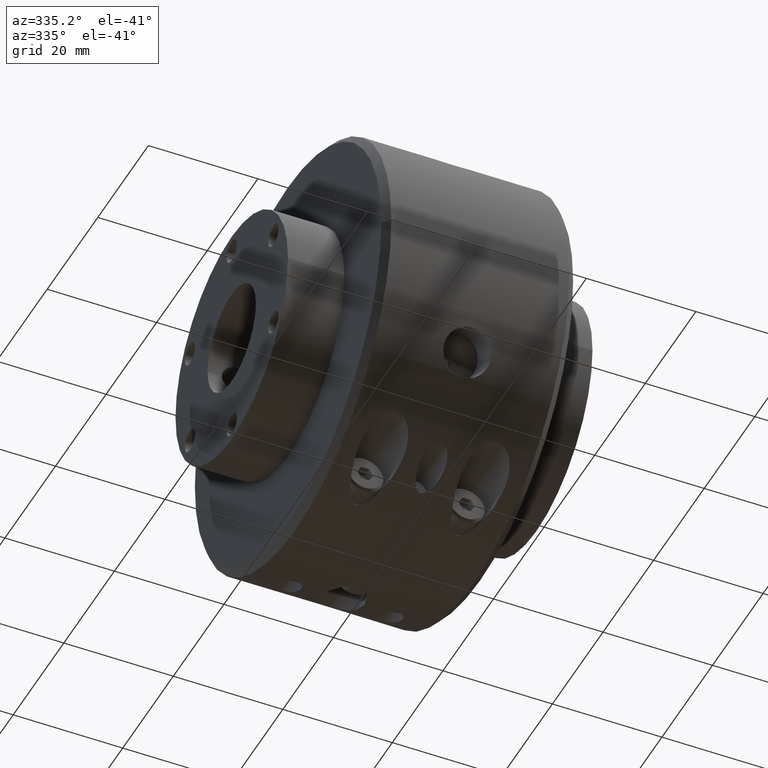
[diagram: clean part render]
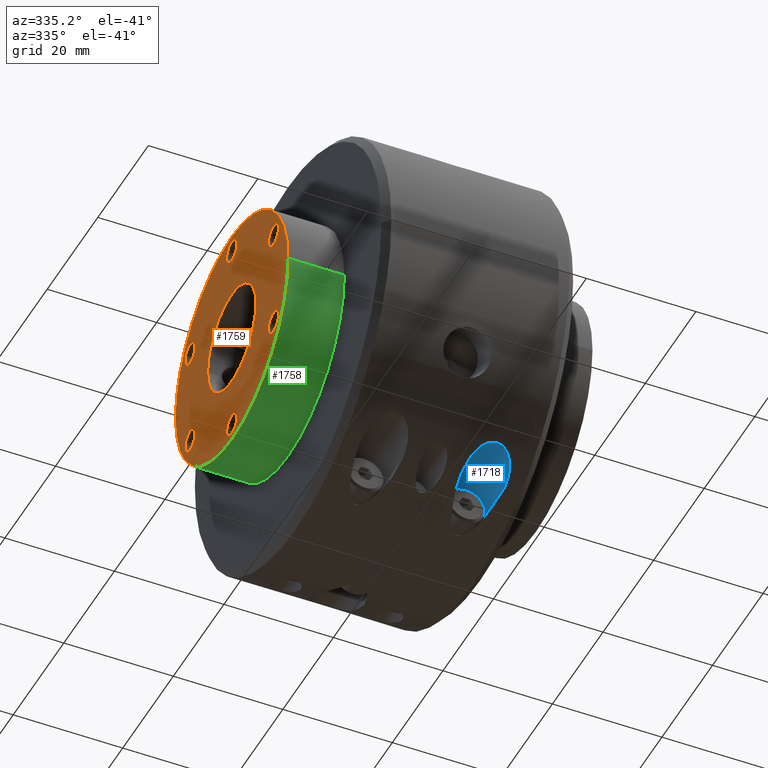
[diagram: same view with three faces highlighted in distinct colors, each labeled with its STEP entity id]
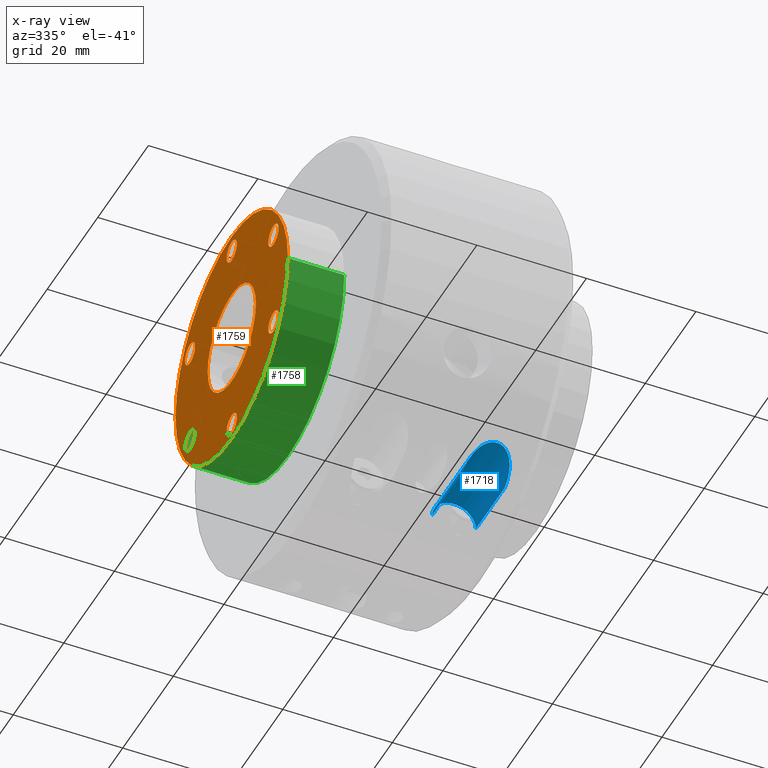
[diagram: x-ray of the same camera — body ghosted, the three highlighted faces saturated]
A machine part, auxiliary view with three faces highlighted in distinct colors.
The next image is the same camera in x-ray (body ghosted, the three faces saturated) — at least one of them is partly hidden behind the body in this view.
Their STEP definitions:

[orange] entity #1759 — the highlighted planar face has unit normal (1, 0, 0).
#347 = DIRECTION ( 'NONE',  ( 0.0000000000000000000, 0.0000000000000000000, -1.000000000000000000 ) ) ;
#367 = CARTESIAN_POINT ( 'NONE',  ( -1.095000000000000000, -0.6495190528383287800, -0.3750000000000000600 ) ) ;
#407 = DIRECTION ( 'NONE',  ( 0.0000000000000000000, 0.0000000000000000000, -1.000000000000000000 ) ) ;
#440 = CARTESIAN_POINT ( 'NONE',  ( -1.095000000000000000, 2.326758979145853200E-016, 0.7500000000000001100 ) ) ;
#444 = DIRECTION ( 'NONE',  ( 0.0000000000000000000, 0.0000000000000000000, -1.000000000000000000 ) ) ;
#446 = DIRECTION ( 'NONE',  ( 1.000000000000000000, -0.0000000000000000000, -0.0000000000000000000 ) ) ;
#451 = DIRECTION ( 'NONE',  ( 0.0000000000000000000, 0.0000000000000000000, -1.000000000000000000 ) ) ;
#454 = DIRECTION ( 'NONE',  ( 0.0000000000000000000, 0.0000000000000000000, -1.000000000000000000 ) ) ;
#458 = CARTESIAN_POINT ( 'NONE',  ( -1.095000000000000000, -4.201462788212306000E-017, 0.0000000000000000000 ) ) ;
#469 = CARTESIAN_POINT ( 'NONE',  ( -1.095000000000000000, -0.6495190528383287800, 0.3750000000000000600 ) ) ;
#478 = CARTESIAN_POINT ( 'NONE',  ( -1.095000000000000000, -0.6495190528383287800, -0.3750000000000000600 ) ) ;
#498 = CARTESIAN_POINT ( 'NONE',  ( -1.095000000000000000, 2.326758979145853200E-016, -0.7500000000000001100 ) ) ;
#509 = CARTESIAN_POINT ( 'NONE',  ( -1.095000000000000200, 0.6495190528383292200, -0.3750000000000000600 ) ) ;
#510 = CARTESIAN_POINT ( 'NONE',  ( -1.095000000000000000, 2.326758979145853200E-016, -0.7500000000000001100 ) ) ;
#535 = CARTESIAN_POINT ( 'NONE',  ( -1.095000000000000000, -4.201462788212306000E-017, 0.0000000000000000000 ) ) ;
#570 = DIRECTION ( 'NONE',  ( 0.0000000000000000000, 0.0000000000000000000, -1.000000000000000000 ) ) ;
#574 = DIRECTION ( 'NONE',  ( 1.000000000000000000, -0.0000000000000000000, -0.0000000000000000000 ) ) ;
#575 = DIRECTION ( 'NONE',  ( 1.000000000000000000, -0.0000000000000000000, -0.0000000000000000000 ) ) ;
#576 = DIRECTION ( 'NONE',  ( 1.000000000000000000, -0.0000000000000000000, -0.0000000000000000000 ) ) ;
#585 = DIRECTION ( 'NONE',  ( 0.0000000000000000000, 1.000000000000000000, 0.0000000000000000000 ) ) ;
#606 = DIRECTION ( 'NONE',  ( 1.000000000000000000, -0.0000000000000000000, -0.0000000000000000000 ) ) ;
#620 = DIRECTION ( 'NONE',  ( 0.0000000000000000000, 1.000000000000000000, 0.0000000000000000000 ) ) ;
#645 = DIRECTION ( 'NONE',  ( 0.0000000000000000000, 0.0000000000000000000, -1.000000000000000000 ) ) ;
#657 = DIRECTION ( 'NONE',  ( -1.000000000000000000, -1.224646799147353200E-016, -0.0000000000000000000 ) ) ;
#658 = DIRECTION ( 'NONE',  ( 1.561055996379579500E-016, -1.000000000000000000, 0.0000000000000000000 ) ) ;
#696 = CARTESIAN_POINT ( 'NONE',  ( -1.094999999999999800, 2.985064260428154100E-032, 0.0000000000000000000 ) ) ;
#702 = DIRECTION ( 'NONE',  ( 1.000000000000000000, -0.0000000000000000000, -0.0000000000000000000 ) ) ;
#715 = CARTESIAN_POINT ( 'NONE',  ( -1.095000000000000000, -0.6495190528383287800, 0.3750000000000000600 ) ) ;
#724 = DIRECTION ( 'NONE',  ( 1.000000000000000000, -0.0000000000000000000, -0.0000000000000000000 ) ) ;
#747 = DIRECTION ( 'NONE',  ( 1.000000000000000000, -0.0000000000000000000, -0.0000000000000000000 ) ) ;
#748 = CARTESIAN_POINT ( 'NONE',  ( -1.095000000000000200, 0.6495190528383292200, 0.3750000000000000600 ) ) ;
#774 = DIRECTION ( 'NONE',  ( 1.000000000000000000, 1.193989507720394800E-016, 0.0000000000000000000 ) ) ;
#778 = DIRECTION ( 'NONE',  ( 0.0000000000000000000, 0.0000000000000000000, -1.000000000000000000 ) ) ;
#784 = DIRECTION ( 'NONE',  ( 0.0000000000000000000, 0.0000000000000000000, -1.000000000000000000 ) ) ;
#791 = CARTESIAN_POINT ( 'NONE',  ( -1.095000000000000200, 0.6495190528383292200, 0.3750000000000000600 ) ) ;
#793 = CARTESIAN_POINT ( 'NONE',  ( -1.095000000000000200, 0.6495190528383292200, -0.3750000000000000600 ) ) ;
#803 = DIRECTION ( 'NONE',  ( 1.000000000000000000, -0.0000000000000000000, -0.0000000000000000000 ) ) ;
#806 = DIRECTION ( 'NONE',  ( 1.000000000000000000, 1.193989507720394800E-016, 0.0000000000000000000 ) ) ;
#855 = DIRECTION ( 'NONE',  ( 0.0000000000000000000, 0.0000000000000000000, -1.000000000000000000 ) ) ;
#858 = DIRECTION ( 'NONE',  ( 1.000000000000000000, -0.0000000000000000000, -0.0000000000000000000 ) ) ;
#1156 = CARTESIAN_POINT ( 'NONE',  ( -1.094999999999999800, 0.8749999999999996700, 1.071565949253933800E-016 ) ) ;
#1157 = CARTESIAN_POINT ( 'NONE',  ( -1.094999999999999500, -0.8749999999999996700, 0.0000000000000000000 ) ) ;
#1158 = CARTESIAN_POINT ( 'NONE',  ( -1.095000000000000000, 2.424118399678066800E-016, 0.8294999999999995700 ) ) ;
#1159 = CARTESIAN_POINT ( 'NONE',  ( -1.095000000000000000, -0.6495190528383287800, -0.2955000000000006000 ) ) ;
#1161 = CARTESIAN_POINT ( 'NONE',  ( -1.095000000000000000, 2.326758979145853200E-016, 0.6705000000000005400 ) ) ;
#1165 = CARTESIAN_POINT ( 'NONE',  ( -1.095000000000000200, 0.6495190528383292200, -0.2955000000000004800 ) ) ;
#1166 = CARTESIAN_POINT ( 'NONE',  ( -1.095000000000000200, 0.6495190528383292200, -0.4544999999999995700 ) ) ;
#1170 = CARTESIAN_POINT ( 'NONE',  ( -1.095000000000000000, -0.6495190528383287800, -0.4544999999999994600 ) ) ;
#1173 = CARTESIAN_POINT ( 'NONE',  ( -1.095000000000000000, -0.6495190528383287800, 0.4544999999999994600 ) ) ;
#1176 = CARTESIAN_POINT ( 'NONE',  ( -1.095000000000000000, -0.6495190528383287800, 0.2955000000000006000 ) ) ;
#1182 = CARTESIAN_POINT ( 'NONE',  ( -1.095000000000000000, 2.424118399678066800E-016, -0.6705000000000005400 ) ) ;
#1183 = CARTESIAN_POINT ( 'NONE',  ( -1.095000000000000000, 2.326758979145853200E-016, -0.8294999999999995700 ) ) ;
#1185 = CARTESIAN_POINT ( 'NONE',  ( -1.095000000000000200, 0.6495190528383292200, 0.4544999999999995700 ) ) ;
#1186 = CARTESIAN_POINT ( 'NONE',  ( -1.095000000000000200, 0.6495190528383292200, 0.2955000000000004800 ) ) ;
#1191 = CARTESIAN_POINT ( 'NONE',  ( -1.095000000000000000, -0.3750000000000001100, 4.592425496802576100E-017 ) ) ;
#1193 = CARTESIAN_POINT ( 'NONE',  ( -1.095000000000000000, 0.3749999999999999400, 0.0000000000000000000 ) ) ;
#1200 = VERTEX_POINT ( 'NONE', #1193 ) ;
#1201 = VERTEX_POINT ( 'NONE', #1191 ) ;
#1204 = VERTEX_POINT ( 'NONE', #1186 ) ;
#1205 = VERTEX_POINT ( 'NONE', #1185 ) ;
#1207 = VERTEX_POINT ( 'NONE', #1183 ) ;
#1208 = VERTEX_POINT ( 'NONE', #1182 ) ;
#1212 = VERTEX_POINT ( 'NONE', #1176 ) ;
#1213 = VERTEX_POINT ( 'NONE', #1173 ) ;
#1216 = VERTEX_POINT ( 'NONE', #1170 ) ;
#1217 = VERTEX_POINT ( 'NONE', #1159 ) ;
#1222 = VERTEX_POINT ( 'NONE', #1166 ) ;
#1223 = VERTEX_POINT ( 'NONE', #1165 ) ;
#1226 = VERTEX_POINT ( 'NONE', #1161 ) ;
#1227 = VERTEX_POINT ( 'NONE', #1158 ) ;
#1228 = VERTEX_POINT ( 'NONE', #1157 ) ;
#1229 = VERTEX_POINT ( 'NONE', #1156 ) ;
#1759 = ADVANCED_FACE ( 'NONE', ( #2665, #2668, #2670, #2672, #2664, #2666, #2669, #2671 ), #4328, .F. ) ;
#1870 = EDGE_CURVE ( 'NONE', #1228, #1229, #3083, .T. ) ;
#1878 = EDGE_CURVE ( 'NONE', #1227, #1226, #3091, .T. ) ;
#1882 = EDGE_CURVE ( 'NONE', #1223, #1222, #3097, .T. ) ;
#1886 = EDGE_CURVE ( 'NONE', #1217, #1216, #3103, .T. ) ;
#1890 = EDGE_CURVE ( 'NONE', #1213, #1212, #3109, .T. ) ;
#1894 = EDGE_CURVE ( 'NONE', #1208, #1207, #3116, .T. ) ;
#1898 = EDGE_CURVE ( 'NONE', #1205, #1204, #3119, .T. ) ;
#1900 = EDGE_CURVE ( 'NONE', #1200, #1201, #3123, .T. ) ;
#1902 = EDGE_CURVE ( 'NONE', #1201, #1200, #3124, .T. ) ;
#1906 = EDGE_CURVE ( 'NONE', #1207, #1208, #3128, .T. ) ;
#1908 = EDGE_CURVE ( 'NONE', #1204, #1205, #3129, .T. ) ;
#1909 = EDGE_CURVE ( 'NONE', #1212, #1213, #3130, .T. ) ;
#1911 = EDGE_CURVE ( 'NONE', #1216, #1217, #3132, .T. ) ;
#1913 = EDGE_CURVE ( 'NONE', #1222, #1223, #3134, .T. ) ;
#1915 = EDGE_CURVE ( 'NONE', #1226, #1227, #3136, .T. ) ;
#1932 = EDGE_CURVE ( 'NONE', #1229, #1228, #3144, .T. ) ;
#2146 = ORIENTED_EDGE ( 'NONE', *, *, #1915, .T. ) ;
#2147 = ORIENTED_EDGE ( 'NONE', *, *, #1878, .T. ) ;
#2148 = ORIENTED_EDGE ( 'NONE', *, *, #1913, .T. ) ;
#2149 = ORIENTED_EDGE ( 'NONE', *, *, #1882, .T. ) ;
#2150 = ORIENTED_EDGE ( 'NONE', *, *, #1911, .T. ) ;
#2151 = ORIENTED_EDGE ( 'NONE', *, *, #1886, .T. ) ;
#2152 = ORIENTED_EDGE ( 'NONE', *, *, #1909, .T. ) ;
#2153 = ORIENTED_EDGE ( 'NONE', *, *, #1890, .T. ) ;
#2154 = ORIENTED_EDGE ( 'NONE', *, *, #1906, .T. ) ;
#2155 = ORIENTED_EDGE ( 'NONE', *, *, #1894, .T. ) ;
#2156 = ORIENTED_EDGE ( 'NONE', *, *, #1908, .T. ) ;
#2157 = ORIENTED_EDGE ( 'NONE', *, *, #1898, .T. ) ;
#2158 = ORIENTED_EDGE ( 'NONE', *, *, #1900, .T. ) ;
#2159 = ORIENTED_EDGE ( 'NONE', *, *, #1902, .T. ) ;
#2160 = ORIENTED_EDGE ( 'NONE', *, *, #1870, .T. ) ;
#2161 = ORIENTED_EDGE ( 'NONE', *, *, #1932, .T. ) ;
#2664 = FACE_BOUND ( 'NONE', #3485, .T. ) ;
#2665 = FACE_BOUND ( 'NONE', #4749, .T. ) ;
#2666 = FACE_BOUND ( 'NONE', #3486, .T. ) ;
#2668 = FACE_BOUND ( 'NONE', #3482, .T. ) ;
#2669 = FACE_BOUND ( 'NONE', #3487, .T. ) ;
#2670 = FACE_BOUND ( 'NONE', #3483, .T. ) ;
#2671 = FACE_OUTER_BOUND ( 'NONE', #3488, .T. ) ;
#2672 = FACE_BOUND ( 'NONE', #3484, .T. ) ;
#2818 = AXIS2_PLACEMENT_3D ( 'NONE', #4329, #4327, #4326 ) ;
#2854 = AXIS2_PLACEMENT_3D ( 'NONE', #696, #657, #658 ) ;
#2856 = AXIS2_PLACEMENT_3D ( 'NONE', #440, #446, #444 ) ;
#2857 = AXIS2_PLACEMENT_3D ( 'NONE', #509, #575, #570 ) ;
#2859 = AXIS2_PLACEMENT_3D ( 'NONE', #367, #576, #645 ) ;
#2861 = AXIS2_PLACEMENT_3D ( 'NONE', #715, #858, #454 ) ;
#2864 = AXIS2_PLACEMENT_3D ( 'NONE', #498, #747, #407 ) ;
#2865 = AXIS2_PLACEMENT_3D ( 'NONE', #458, #774, #585 ) ;
#2866 = AXIS2_PLACEMENT_3D ( 'NONE', #791, #702, #784 ) ;
#2868 = AXIS2_PLACEMENT_3D ( 'NONE', #535, #806, #620 ) ;
#2869 = AXIS2_PLACEMENT_3D ( 'NONE', #510, #724, #855 ) ;
#2870 = AXIS2_PLACEMENT_3D ( 'NONE', #469, #803, #778 ) ;
#2871 = AXIS2_PLACEMENT_3D ( 'NONE', #748, #606, #451 ) ;
#2873 = AXIS2_PLACEMENT_3D ( 'NONE', #478, #574, #347 ) ;
#2875 = AXIS2_PLACEMENT_3D ( 'NONE', #793, #3466, #3465 ) ;
#2877 = AXIS2_PLACEMENT_3D ( 'NONE', #3468, #3438, #3420 ) ;
#2886 = AXIS2_PLACEMENT_3D ( 'NONE', #3738, #3739, #3740 ) ;
#3083 = CIRCLE ( 'NONE', #2854, 0.8749999999999996700 ) ;
#3091 = CIRCLE ( 'NONE', #2856, 0.07949999999999951500 ) ;
#3097 = CIRCLE ( 'NONE', #2857, 0.07949999999999951500 ) ;
#3103 = CIRCLE ( 'NONE', #2859, 0.07949999999999944600 ) ;
#3109 = CIRCLE ( 'NONE', #2861, 0.07949999999999944600 ) ;
#3116 = CIRCLE ( 'NONE', #2864, 0.07949999999999951500 ) ;
#3119 = CIRCLE ( 'NONE', #2866, 0.07949999999999951500 ) ;
#3123 = CIRCLE ( 'NONE', #2865, 0.3750000000000000600 ) ;
#3124 = CIRCLE ( 'NONE', #2868, 0.3750000000000000600 ) ;
#3128 = CIRCLE ( 'NONE', #2869, 0.07949999999999951500 ) ;
#3129 = CIRCLE ( 'NONE', #2871, 0.07949999999999951500 ) ;
#3130 = CIRCLE ( 'NONE', #2870, 0.07949999999999944600 ) ;
#3132 = CIRCLE ( 'NONE', #2873, 0.07949999999999944600 ) ;
#3134 = CIRCLE ( 'NONE', #2875, 0.07949999999999951500 ) ;
#3136 = CIRCLE ( 'NONE', #2877, 0.07949999999999951500 ) ;
#3144 = CIRCLE ( 'NONE', #2886, 0.8749999999999996700 ) ;
#3420 = DIRECTION ( 'NONE',  ( 0.0000000000000000000, 0.0000000000000000000, -1.000000000000000000 ) ) ;
#3438 = DIRECTION ( 'NONE',  ( 1.000000000000000000, -0.0000000000000000000, -0.0000000000000000000 ) ) ;
#3465 = DIRECTION ( 'NONE',  ( 0.0000000000000000000, 0.0000000000000000000, -1.000000000000000000 ) ) ;
#3466 = DIRECTION ( 'NONE',  ( 1.000000000000000000, -0.0000000000000000000, -0.0000000000000000000 ) ) ;
#3468 = CARTESIAN_POINT ( 'NONE',  ( -1.095000000000000000, 2.326758979145853200E-016, 0.7500000000000001100 ) ) ;
#3482 = EDGE_LOOP ( 'NONE', ( #2148, #2149 ) ) ;
#3483 = EDGE_LOOP ( 'NONE', ( #2150, #2151 ) ) ;
#3484 = EDGE_LOOP ( 'NONE', ( #2152, #2153 ) ) ;
#3485 = EDGE_LOOP ( 'NONE', ( #2154, #2155 ) ) ;
#3486 = EDGE_LOOP ( 'NONE', ( #2156, #2157 ) ) ;
#3487 = EDGE_LOOP ( 'NONE', ( #2158, #2159 ) ) ;
#3488 = EDGE_LOOP ( 'NONE', ( #2160, #2161 ) ) ;
#3738 = CARTESIAN_POINT ( 'NONE',  ( -1.094999999999999800, 2.985064260428154100E-032, 0.0000000000000000000 ) ) ;
#3739 = DIRECTION ( 'NONE',  ( -1.000000000000000000, -1.224646799147353200E-016, -0.0000000000000000000 ) ) ;
#3740 = DIRECTION ( 'NONE',  ( 1.561055996379579500E-016, -1.000000000000000000, 0.0000000000000000000 ) ) ;
#4326 = DIRECTION ( 'NONE',  ( -1.224646799147353200E-016, 1.000000000000000000, 0.0000000000000000000 ) ) ;
#4327 = DIRECTION ( 'NONE',  ( 1.000000000000000000, 1.224646799147353200E-016, 0.0000000000000000000 ) ) ;
#4328 = PLANE ( 'NONE',  #2818 ) ;
#4329 = CARTESIAN_POINT ( 'NONE',  ( -1.095000000000000000, 0.8749999999999996700, 0.0000000000000000000 ) ) ;
#4749 = EDGE_LOOP ( 'NONE', ( #2146, #2147 ) ) ;

[blue] entity #1718 — the highlighted cylindrical surface (edge-blend (fillet) strip) has radius 4 mm, axis along (0, 1, 0).
#163 = DIRECTION ( 'NONE',  ( 1.365923996832131600E-016, 1.000000000000000000, 0.0000000000000000000 ) ) ;
#165 = CARTESIAN_POINT ( 'NONE',  ( 0.5217716535433067900, 1.500000000000000400, -1.300000000000000000 ) ) ;
#166 = CARTESIAN_POINT ( 'NONE',  ( 0.5217716535433065700, -0.7483314773547882200, -1.300000000000000000 ) ) ;
#167 = CARTESIAN_POINT ( 'NONE',  ( 0.5217716535433064600, -0.7608462607478573300, -1.292795995118992000 ) ) ;
#168 = CARTESIAN_POINT ( 'NONE',  ( 0.5212750714864584600, -0.7733164681625427400, -1.285374659069592700 ) ) ;
#169 = CARTESIAN_POINT ( 'NONE',  ( 0.5191375846986704400, -0.7977928182552162000, -1.270327907766361000 ) ) ;
#170 = CARTESIAN_POINT ( 'NONE',  ( 0.5174981698789071800, -0.8098600075883288800, -1.262667286518678500 ) ) ;
#171 = CARTESIAN_POINT ( 'NONE',  ( 0.5128426696226471300, -0.8336349275217246300, -1.247098518943576200 ) ) ;
#172 = CARTESIAN_POINT ( 'NONE',  ( 0.5098301782707455000, -0.8453429823062532700, -1.239190050770225100 ) ) ;
#173 = CARTESIAN_POINT ( 'NONE',  ( 0.5020441120038757800, -0.8683682889356320000, -1.223165260475193000 ) ) ;
#174 = CARTESIAN_POINT ( 'NONE',  ( 0.4973363227524181300, -0.8794872291081811100, -1.215186117370192100 ) ) ;
#175 = CARTESIAN_POINT ( 'NONE',  ( 0.4859072738139120800, -0.9007878304300361800, -1.199481709140567400 ) ) ;
#176 = CARTESIAN_POINT ( 'NONE',  ( 0.4791830394337309700, -0.9109962537898097500, -1.191735644235552400 ) ) ;
#177 = CARTESIAN_POINT ( 'NONE',  ( 0.4630004197291856000, -0.9302072300565894500, -1.176801822445497000 ) ) ;
#179 = CARTESIAN_POINT ( 'NONE',  ( 0.4537910607859164100, -0.9389261828274667600, -1.169834967160549500 ) ) ;
#180 = CARTESIAN_POINT ( 'NONE',  ( 0.4377214736289004000, -0.9503410109454085700, -1.160549878166758700 ) ) ;
#182 = CARTESIAN_POINT ( 'NONE',  ( 0.4319399655519532400, -0.9538823310932801300, -1.157637588272447400 ) ) ;
#185 = CARTESIAN_POINT ( 'NONE',  ( 0.4198215708912363400, -0.9600977383598760000, -1.152488013017683800 ) ) ;
#186 = CARTESIAN_POINT ( 'NONE',  ( 0.4134596132898324900, -0.9627980645875371400, -1.150229725426515900 ) ) ;
#187 = CARTESIAN_POINT ( 'NONE',  ( 0.4000324289088415500, -0.9672710792129162200, -1.146470755731059200 ) ) ;
#189 = CARTESIAN_POINT ( 'NONE',  ( 0.3930634843731003500, -0.9690024487945928500, -1.145005054817359400 ) ) ;
#190 = CARTESIAN_POINT ( 'NONE',  ( 0.3788862140008792400, -0.9713264716582465900, -1.143034210679261700 ) ) ;
#191 = CARTESIAN_POINT ( 'NONE',  ( 0.3715420761088296700, -0.9719323788677179900, -1.142518030892767800 ) ) ;
#193 = CARTESIAN_POINT ( 'NONE',  ( 0.3569689246699043700, -0.9719284803291431400, -1.142521347341760400 ) ) ;
#195 = CARTESIAN_POINT ( 'NONE',  ( 0.3497985618510459100, -0.9713360411758221700, -1.143026058434965200 ) ) ;
#196 = CARTESIAN_POINT ( 'NONE',  ( 0.3356765893304884400, -0.9690352867761552500, -1.144977243499251800 ) ) ;
#197 = CARTESIAN_POINT ( 'NONE',  ( 0.3286458856834654800, -0.9672953194535267600, -1.146450240603352800 ) ) ;
#198 = CARTESIAN_POINT ( 'NONE',  ( 0.3152885428859195600, -0.9628606628578629800, -1.150177261615400700 ) ) ;
#199 = CARTESIAN_POINT ( 'NONE',  ( 0.3089482121092274600, -0.9601810804832673400, -1.152418493916793400 ) ) ;
#200 = CARTESIAN_POINT ( 'NONE',  ( 0.2968550087861255300, -0.9540034286400217400, -1.157537710220512700 ) ) ;
#201 = CARTESIAN_POINT ( 'NONE',  ( 0.2910697937188417800, -0.9504754966906362500, -1.160439723472042300 ) ) ;
#202 = CARTESIAN_POINT ( 'NONE',  ( 0.2749567400669731300, -0.9390701147045922300, -1.169719370684023000 ) ) ;
#205 = CARTESIAN_POINT ( 'NONE',  ( 0.2656613044062246000, -0.9302839314694096900, -1.176740779543122400 ) ) ;
#206 = CARTESIAN_POINT ( 'NONE',  ( 0.2495039500591249300, -0.9111370313940014800, -1.191627611887397600 ) ) ;
#207 = CARTESIAN_POINT ( 'NONE',  ( 0.2427918967427717400, -0.9009748494958020900, -1.199341061471975900 ) ) ;
#208 = CARTESIAN_POINT ( 'NONE',  ( 0.2313461356273511500, -0.8797027225979100500, -1.215029950663988600 ) ) ;
#209 = CARTESIAN_POINT ( 'NONE',  ( 0.2266107372358752100, -0.8685481234015038900, -1.223037258794813500 ) ) ;
#210 = CARTESIAN_POINT ( 'NONE',  ( 0.2188181079857004200, -0.8455700110918061800, -1.239034840271575600 ) ) ;
#211 = CARTESIAN_POINT ( 'NONE',  ( 0.2157866248014720400, -0.8338418130098206300, -1.246961020171780000 ) ) ;
#212 = CARTESIAN_POINT ( 'NONE',  ( 0.2110958131363329400, -0.8099485433705310200, -1.262611306793704600 ) ) ;
#213 = CARTESIAN_POINT ( 'NONE',  ( 0.2094363675603356800, -0.7977397334933004100, -1.270362221121160500 ) ) ;
#214 = CARTESIAN_POINT ( 'NONE',  ( 0.2072941592587657400, -0.7731151829106067700, -1.285496701356697100 ) ) ;
#215 = CARTESIAN_POINT ( 'NONE',  ( 0.2068110236220464800, -0.7607517504694872900, -1.292850398977636100 ) ) ;
#216 = DIRECTION ( 'NONE',  ( 1.365923996832131600E-016, 1.000000000000000000, 0.0000000000000000000 ) ) ;
#217 = CARTESIAN_POINT ( 'NONE',  ( 0.2068110236220464800, -0.7483314773547884400, -1.300000000000000000 ) ) ;
#225 = CARTESIAN_POINT ( 'NONE',  ( 0.2068110236220468100, 1.500000000000000400, -1.300000000000000000 ) ) ;
#249 = CARTESIAN_POINT ( 'NONE',  ( 0.3642913385826765400, -0.3000000000000001000, -1.300000000000000000 ) ) ;
#280 = DIRECTION ( 'NONE',  ( 1.000000000000000000, -2.168404344971008900E-016, 0.0000000000000000000 ) ) ;
#281 = DIRECTION ( 'NONE',  ( -1.365923996832131600E-016, -1.000000000000000000, -0.0000000000000000000 ) ) ;
#301 = B_SPLINE_CURVE_WITH_KNOTS ( 'NONE', 3,
 ( #217, #215, #214, #213, #212, #211, #210, #209, #208, #207, #206, #205, #202, #201, #200, #199, #198, #197, #196, #195, #193, #191, #190, #189, #187, #186, #185, #182, #180, #179, #177, #176, #175, #174, #173, #172, #171, #170, #169, #168, #167, #166 ),
 .UNSPECIFIED., .F., .F.,
 ( 4, 2, 2, 2, 2, 2, 2, 2, 2, 2, 2, 2, 2, 2, 2, 2, 2, 2, 2, 2, 4 ),
 ( 0.02385606548911295100, 0.02494049929722379900, 0.02602493310533465100, 0.02710936691344549900, 0.02819380072155634700, 0.02927823452966719900, 0.03036266833777804700, 0.03090488524183347300, 0.03144710214588889600, 0.03198931904994432200, 0.03253153595399974800, 0.03307375285805517300, 0.03361596976211059900, 0.03415818666616601800, 0.03470040357022144400, 0.03578483737833228900, 0.03686927118644312700, 0.03795370499455396500, 0.03903813880266480300, 0.04012257261077564800, 0.04120700641888648500 ),
 .UNSPECIFIED. ) ;
#1050 = CARTESIAN_POINT ( 'NONE',  ( 0.2068110236220464800, -0.7483314773547884400, -1.300000000000000000 ) ) ;
#1051 = CARTESIAN_POINT ( 'NONE',  ( 0.5217716535433065700, -0.7483314773547882200, -1.300000000000000000 ) ) ;
#1052 = CARTESIAN_POINT ( 'NONE',  ( 0.2068110236220466200, -0.3000000000000000400, -1.300000000000000000 ) ) ;
#1053 = CARTESIAN_POINT ( 'NONE',  ( 0.5217716535433064600, -0.3000000000000001000, -1.300000000000000000 ) ) ;
#1321 = VERTEX_POINT ( 'NONE', #1053 ) ;
#1322 = VERTEX_POINT ( 'NONE', #1052 ) ;
#1323 = VERTEX_POINT ( 'NONE', #1051 ) ;
#1324 = VERTEX_POINT ( 'NONE', #1050 ) ;
#1718 = ADVANCED_FACE ( 'NONE', ( #2568 ), #2577, .F. ) ;
#1781 = EDGE_CURVE ( 'NONE', #1321, #1322, #2716, .T. ) ;
#1790 = EDGE_CURVE ( 'NONE', #1324, #1322, #2726, .T. ) ;
#1791 = EDGE_CURVE ( 'NONE', #1324, #1323, #301, .T. ) ;
#1792 = EDGE_CURVE ( 'NONE', #1323, #1321, #2729, .T. ) ;
#2568 = FACE_OUTER_BOUND ( 'NONE', #4826, .T. ) ;
#2577 = CYLINDRICAL_SURFACE ( 'NONE', #2777, 0.1574803149606300000 ) ;
#2716 = CIRCLE ( 'NONE', #2824, 0.1574803149606299200 ) ;
#2721 = VECTOR ( 'NONE', #216, 39.37007874015748100 ) ;
#2722 = VECTOR ( 'NONE', #163, 39.37007874015748100 ) ;
#2726 = LINE ( 'NONE', #225, #2721 ) ;
#2729 = LINE ( 'NONE', #165, #2722 ) ;
#2777 = AXIS2_PLACEMENT_3D ( 'NONE', #4476, #4477, #4481 ) ;
#2824 = AXIS2_PLACEMENT_3D ( 'NONE', #249, #281, #280 ) ;
#4476 = CARTESIAN_POINT ( 'NONE',  ( 0.3642913385826768200, 1.500000000000000400, -1.300000000000000000 ) ) ;
#4477 = DIRECTION ( 'NONE',  ( 1.365923996832131600E-016, 1.000000000000000000, 0.0000000000000000000 ) ) ;
#4481 = DIRECTION ( 'NONE',  ( 1.000000000000000000, 0.0000000000000000000, 0.0000000000000000000 ) ) ;
#4826 = EDGE_LOOP ( 'NONE', ( #4943, #4942, #4941, #4940 ) ) ;
#4940 = ORIENTED_EDGE ( 'NONE', *, *, #1792, .F. ) ;
#4941 = ORIENTED_EDGE ( 'NONE', *, *, #1781, .F. ) ;
#4942 = ORIENTED_EDGE ( 'NONE', *, *, #1790, .T. ) ;
#4943 = ORIENTED_EDGE ( 'NONE', *, *, #1791, .F. ) ;

[green] entity #1758 — the highlighted cylindrical surface (partial cylindrical patch) has radius 22.225 mm, axis along (-1, -0, -0).
#305 = B_SPLINE_CURVE_WITH_KNOTS ( 'NONE', 3,
 ( #501, #818, #705, #523, #825, #790, #412, #853, #579, #646, #683, #706, #578, #420, #500, #369 ),
 .UNSPECIFIED., .F., .F.,
 ( 4, 2, 2, 2, 2, 2, 2, 4 ),
 ( 0.01198214086369094600, 0.01248100846266987800, 0.01297987606164881100, 0.01347874366062774300, 0.01397761125960667700, 0.01447647885858561000, 0.01497534645756454200, 0.01597308165552240700 ),
 .UNSPECIFIED. ) ;
#327 = B_SPLINE_CURVE_WITH_KNOTS ( 'NONE', 3,
 ( #3716, #3721, #3722, #3723, #3724, #3725, #3726, #3727, #3728, #3729, #3730, #3731, #3732, #3733, #3734, #3735, #3736, #3737 ),
 .UNSPECIFIED., .F., .F.,
 ( 4, 2, 2, 2, 2, 2, 2, 2, 4 ),
 ( 0.0000000000000000000, 0.0004993345081850383600, 0.0009986690163700767200, 0.001498003524555115200, 0.001997338032740153400, 0.002496672540925191900, 0.002996007049110230400, 0.003495341557295268400, 0.003994676065480306000 ),
 .UNSPECIFIED. ) ;
#348 = CARTESIAN_POINT ( 'NONE',  ( -1.095000000000000000, 0.8749999999999997800, 1.071565949253933900E-016 ) ) ;
#369 = CARTESIAN_POINT ( 'NONE',  ( -0.8924999999999997400, 0.8692092670927983300, -0.1004999999999997100 ) ) ;
#412 = CARTESIAN_POINT ( 'NONE',  ( -0.9797369589131509300, 0.8735684796758119700, -0.05032919596404899400 ) ) ;
#420 = CARTESIAN_POINT ( 'NONE',  ( -0.9189798640695866500, 0.8695287762524353000, -0.09782731831780074000 ) ) ;
#500 = CARTESIAN_POINT ( 'NONE',  ( -0.9057830208372620300, 0.8692092670927983300, -0.1004999999999997000 ) ) ;
#501 = CARTESIAN_POINT ( 'NONE',  ( -0.9929999999999994400, 0.8749999999999997800, 1.073809528650351000E-016 ) ) ;
#523 = CARTESIAN_POINT ( 'NONE',  ( -0.9897946713433587500, 0.8746367210687636700, -0.02601682872683477200 ) ) ;
#578 = CARTESIAN_POINT ( 'NONE',  ( -0.9370999068534716600, 0.8703318284274203000, -0.09029882425181741400 ) ) ;
#579 = CARTESIAN_POINT ( 'NONE',  ( -0.9682145839743147000, 0.8724884979141993600, -0.06641086223648724800 ) ) ;
#641 = CARTESIAN_POINT ( 'NONE',  ( -1.094999999999999800, -0.8749999999999997800, 0.0000000000000000000 ) ) ;
#643 = DIRECTION ( 'NONE',  ( -1.000000000000000000, -1.224646799147353200E-016, -0.0000000000000000000 ) ) ;
#646 = CARTESIAN_POINT ( 'NONE',  ( -0.9589600725605289500, 0.8717341464064163300, -0.07567139224731146700 ) ) ;
#683 = CARTESIAN_POINT ( 'NONE',  ( -0.9539091953557661300, 0.8713586286979798600, -0.07982960365564745200 ) ) ;
#705 = CARTESIAN_POINT ( 'NONE',  ( -0.9923480417846093400, 0.8749244380049783200, -0.01317182601587467200 ) ) ;
#706 = CARTESIAN_POINT ( 'NONE',  ( -0.9429358528861749900, 0.8706540907780409000, -0.08717843562317742500 ) ) ;
#725 = DIRECTION ( 'NONE',  ( -1.000000000000000000, -1.224646799147353200E-016, -0.0000000000000000000 ) ) ;
#736 = DIRECTION ( 'NONE',  ( -1.000000000000000000, -1.224646799147353200E-016, -0.0000000000000000000 ) ) ;
#790 = CARTESIAN_POINT ( 'NONE',  ( -0.9828210075559697900, 0.8738857781699078700, -0.04456118603790577800 ) ) ;
#801 = CARTESIAN_POINT ( 'NONE',  ( -1.095000000000000000, 0.8749999999999997800, 1.071565949253933900E-016 ) ) ;
#818 = CARTESIAN_POINT ( 'NONE',  ( -0.9929999999999996600, 0.8749999999999997800, -0.006641087411954591500 ) ) ;
#825 = CARTESIAN_POINT ( 'NONE',  ( -0.9878619509478177000, 0.8744211631532452500, -0.03239879655876956600 ) ) ;
#853 = CARTESIAN_POINT ( 'NONE',  ( -0.9724513763101525500, 0.8728710238383347000, -0.06124616227091182800 ) ) ;
#1089 = CARTESIAN_POINT ( 'NONE',  ( -0.9929999999999994400, 0.8749999999999997800, 1.073809528650351000E-016 ) ) ;
#1096 = CARTESIAN_POINT ( 'NONE',  ( -0.8924999999999997400, 0.8692092670927983300, -0.1004999999999997100 ) ) ;
#1150 = CARTESIAN_POINT ( 'NONE',  ( -0.6899999999999995000, -0.8749999999999997800, 0.0000000000000000000 ) ) ;
#1151 = CARTESIAN_POINT ( 'NONE',  ( -0.6899999999999997200, 0.8749999999999997800, 1.071565949253933900E-016 ) ) ;
#1154 = CARTESIAN_POINT ( 'NONE',  ( -0.7919999999999999300, 0.8749999999999997800, 1.071565935861485900E-016 ) ) ;
#1156 = CARTESIAN_POINT ( 'NONE',  ( -1.094999999999999800, 0.8749999999999996700, 1.071565949253933800E-016 ) ) ;
#1157 = CARTESIAN_POINT ( 'NONE',  ( -1.094999999999999500, -0.8749999999999996700, 0.0000000000000000000 ) ) ;
#1228 = VERTEX_POINT ( 'NONE', #1157 ) ;
#1229 = VERTEX_POINT ( 'NONE', #1156 ) ;
#1230 = VERTEX_POINT ( 'NONE', #1154 ) ;
#1231 = VERTEX_POINT ( 'NONE', #1151 ) ;
#1232 = VERTEX_POINT ( 'NONE', #1150 ) ;
#1284 = VERTEX_POINT ( 'NONE', #1096 ) ;
#1288 = VERTEX_POINT ( 'NONE', #1089 ) ;
#1758 = ADVANCED_FACE ( 'NONE', ( #2662 ), #2667, .T. ) ;
#1817 = EDGE_CURVE ( 'NONE', #1288, #1284, #305, .T. ) ;
#1864 = EDGE_CURVE ( 'NONE', #1288, #1229, #3072, .T. ) ;
#1866 = EDGE_CURVE ( 'NONE', #1231, #1230, #3074, .T. ) ;
#1869 = EDGE_CURVE ( 'NONE', #1232, #1228, #3068, .T. ) ;
#1931 = EDGE_CURVE ( 'NONE', #1284, #1230, #327, .T. ) ;
#1932 = EDGE_CURVE ( 'NONE', #1229, #1228, #3144, .T. ) ;
#1936 = EDGE_CURVE ( 'NONE', #1231, #1232, #3148, .T. ) ;
#2139 = ORIENTED_EDGE ( 'NONE', *, *, #1866, .F. ) ;
#2140 = ORIENTED_EDGE ( 'NONE', *, *, #1936, .T. ) ;
#2141 = ORIENTED_EDGE ( 'NONE', *, *, #1869, .T. ) ;
#2142 = ORIENTED_EDGE ( 'NONE', *, *, #1932, .F. ) ;
#2143 = ORIENTED_EDGE ( 'NONE', *, *, #1864, .F. ) ;
#2144 = ORIENTED_EDGE ( 'NONE', *, *, #1817, .T. ) ;
#2145 = ORIENTED_EDGE ( 'NONE', *, *, #1931, .T. ) ;
#2662 = FACE_OUTER_BOUND ( 'NONE', #3476, .T. ) ;
#2667 = CYLINDRICAL_SURFACE ( 'NONE', #2817, 0.8749999999999997800 ) ;
#2817 = AXIS2_PLACEMENT_3D ( 'NONE', #4339, #4336, #4335 ) ;
#2886 = AXIS2_PLACEMENT_3D ( 'NONE', #3738, #3739, #3740 ) ;
#2889 = AXIS2_PLACEMENT_3D ( 'NONE', #3744, #3751, #3752 ) ;
#3061 = VECTOR ( 'NONE', #736, 39.37007874015748100 ) ;
#3068 = LINE ( 'NONE', #641, #3077 ) ;
#3071 = VECTOR ( 'NONE', #725, 39.37007874015748100 ) ;
#3072 = LINE ( 'NONE', #801, #3061 ) ;
#3074 = LINE ( 'NONE', #348, #3071 ) ;
#3077 = VECTOR ( 'NONE', #643, 39.37007874015748100 ) ;
#3144 = CIRCLE ( 'NONE', #2886, 0.8749999999999996700 ) ;
#3148 = CIRCLE ( 'NONE', #2889, 0.8749999999999997800 ) ;
#3476 = EDGE_LOOP ( 'NONE', ( #2139, #2140, #2141, #2142, #2143, #2144, #2145 ) ) ;
#3716 = CARTESIAN_POINT ( 'NONE',  ( -0.8924999999999997400, 0.8692092670927983300, -0.1004999999999997100 ) ) ;
#3721 = CARTESIAN_POINT ( 'NONE',  ( -0.8858522735385481200, 0.8692092670927987800, -0.1004999999999997400 ) ) ;
#3722 = CARTESIAN_POINT ( 'NONE',  ( -0.8793167795706459100, 0.8692854817963917600, -0.09984692194070529700 ) ) ;
#3723 = CARTESIAN_POINT ( 'NONE',  ( -0.8664607363340537400, 0.8695754681529147500, -0.09728906346377060000 ) ) ;
#3724 = CARTESIAN_POINT ( 'NONE',  ( -0.8600731032447325200, 0.8697926711742015600, -0.09535280014761426900 ) ) ;
#3725 = CARTESIAN_POINT ( 'NONE',  ( -0.8479017649764990500, 0.8703314252412052100, -0.09030314259180692600 ) ) ;
#3726 = CARTESIAN_POINT ( 'NONE',  ( -0.8421300385364233200, 0.8706504339144410800, -0.08721386935192555800 ) ) ;
#3727 = CARTESIAN_POINT ( 'NONE',  ( -0.8312071269809560000, 0.8713505961095633400, -0.07991605434609692900 ) ) ;
#3728 = CARTESIAN_POINT ( 'NONE',  ( -0.8260401554899773300, 0.8717341077345801500, -0.07567211719199924700 ) ) ;
#3729 = CARTESIAN_POINT ( 'NONE',  ( -0.8167775706389752700, 0.8724891575050337500, -0.06640251459305363000 ) ) ;
#3730 = CARTESIAN_POINT ( 'NONE',  ( -0.8126194365520715800, 0.8728644144957915500, -0.06134358786672781900 ) ) ;
#3731 = CARTESIAN_POINT ( 'NONE',  ( -0.8052731858077136800, 0.8735673407302144700, -0.05035298476739813500 ) ) ;
#3732 = CARTESIAN_POINT ( 'NONE',  ( -0.8021558575005759400, 0.8738882124777174200, -0.04450894270361463500 ) ) ;
#3733 = CARTESIAN_POINT ( 'NONE',  ( -0.7971450719229890000, 0.8744204401385621300, -0.03241215444826076700 ) ) ;
#3734 = CARTESIAN_POINT ( 'NONE',  ( -0.7952147956739237200, 0.8746356500338496900, -0.02606955036553843000 ) ) ;
#3735 = CARTESIAN_POINT ( 'NONE',  ( -0.7926366013522283500, 0.8749261727247917800, -0.01308946322597076400 ) ) ;
#3736 = CARTESIAN_POINT ( 'NONE',  ( -0.7920000000000000400, 0.8750000000000001100, -0.006562671237175361800 ) ) ;
#3737 = CARTESIAN_POINT ( 'NONE',  ( -0.7919999999999999300, 0.8749999999999997800, 1.071565935861485900E-016 ) ) ;
#3738 = CARTESIAN_POINT ( 'NONE',  ( -1.094999999999999800, 2.985064260428154100E-032, 0.0000000000000000000 ) ) ;
#3739 = DIRECTION ( 'NONE',  ( -1.000000000000000000, -1.224646799147353200E-016, -0.0000000000000000000 ) ) ;
#3740 = DIRECTION ( 'NONE',  ( 1.561055996379579500E-016, -1.000000000000000000, 0.0000000000000000000 ) ) ;
#3744 = CARTESIAN_POINT ( 'NONE',  ( -0.6899999999999996100, 4.959819536546784300E-017, 0.0000000000000000000 ) ) ;
#3751 = DIRECTION ( 'NONE',  ( -1.000000000000000000, -1.224646799147353200E-016, -0.0000000000000000000 ) ) ;
#3752 = DIRECTION ( 'NONE',  ( 1.561055996379579500E-016, -1.000000000000000000, 0.0000000000000000000 ) ) ;
#4335 = DIRECTION ( 'NONE',  ( 1.561055996379579500E-016, -1.000000000000000000, 0.0000000000000000000 ) ) ;
#4336 = DIRECTION ( 'NONE',  ( -1.000000000000000000, -1.224646799147353200E-016, -0.0000000000000000000 ) ) ;
#4339 = CARTESIAN_POINT ( 'NONE',  ( -1.095000000000000000, 0.0000000000000000000, 0.0000000000000000000 ) ) ;